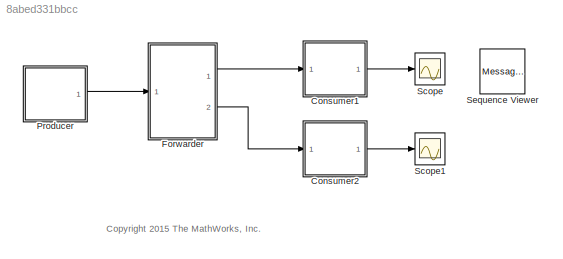
MODEL slx_8abed331bbcc
KIND model
CONFIG AbsTol = auto
CONFIG EnableMultiTasking = on
CONFIG FixedStep = 1
CONFIG MaxStep = auto
CONFIG MinStep = auto
CONFIG RelTol = 1e-3
CONFIG SampleTimeConstraint = Unconstrained
CONFIG Solver = FixedStepDiscrete
CONFIG SolverName = FixedStepDiscrete
CONFIG StartTime = 0.0
CONFIG StopTime = 10.0
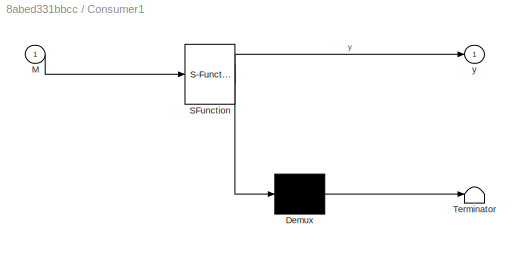
BLOCK [SubSystem] Consumer1
  ErrorFcn = Stateflow.Translate.translate
  PermitHierarchicalResolution = ExplicitOnly
  Ports = [1, 1]
  RequestExecContextInheritance = off
  SFBlockType = Chart
  TreatAsAtomicUnit = on
  Variant = off
BLOCK [Demux] Consumer1/ Demux 
  Outputs = 1
  Ports = [1, 1]
BLOCK [S-Function] Consumer1/ SFunction 
  EnableBusSupport = off
  FunctionName = sf_sfun
  PortCounts = [1 2]
  Ports = [1, 2]
  SFcnIsStateOwnerBlock = off
  SFunctionDeploymentMode = off
  Tag = Stateflow S-Function sf_msg_forwarding 2
BLOCK [Terminator] Consumer1/ Terminator 
BLOCK [Inport] Consumer1/M
  IconDisplay = Port number
BLOCK [Outport] Consumer1/y
  IconDisplay = Port number
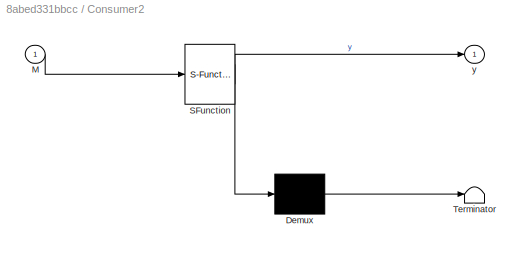
BLOCK [SubSystem] Consumer2
  ErrorFcn = Stateflow.Translate.translate
  PermitHierarchicalResolution = ExplicitOnly
  Ports = [1, 1]
  RequestExecContextInheritance = off
  SFBlockType = Chart
  TreatAsAtomicUnit = on
  Variant = off
BLOCK [Demux] Consumer2/ Demux 
  Outputs = 1
  Ports = [1, 1]
BLOCK [S-Function] Consumer2/ SFunction 
  EnableBusSupport = off
  FunctionName = sf_sfun
  PortCounts = [1 2]
  Ports = [1, 2]
  SFcnIsStateOwnerBlock = off
  SFunctionDeploymentMode = off
  Tag = Stateflow S-Function sf_msg_forwarding 4
BLOCK [Terminator] Consumer2/ Terminator 
BLOCK [Inport] Consumer2/M
  IconDisplay = Port number
BLOCK [Outport] Consumer2/y
  IconDisplay = Port number
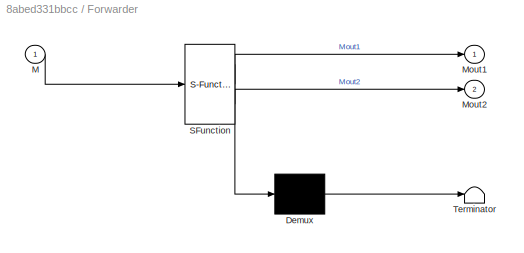
BLOCK [SubSystem] Forwarder
  ErrorFcn = Stateflow.Translate.translate
  PermitHierarchicalResolution = ExplicitOnly
  Ports = [1, 2]
  RequestExecContextInheritance = off
  SFBlockType = Chart
  TreatAsAtomicUnit = on
  Variant = off
BLOCK [Demux] Forwarder/ Demux 
  Outputs = 1
  Ports = [1, 1]
BLOCK [S-Function] Forwarder/ SFunction 
  EnableBusSupport = off
  FunctionName = sf_sfun
  PortCounts = [1 3]
  Ports = [1, 3]
  SFcnIsStateOwnerBlock = off
  SFunctionDeploymentMode = off
  Tag = Stateflow S-Function sf_msg_forwarding 1
BLOCK [Terminator] Forwarder/ Terminator 
BLOCK [Inport] Forwarder/M
  IconDisplay = Port number
BLOCK [Outport] Forwarder/Mout1
  IconDisplay = Port number
BLOCK [Outport] Forwarder/Mout2
  IconDisplay = Port number
  Port = 2
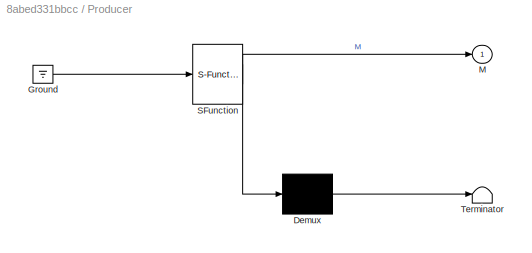
BLOCK [SubSystem] Producer
  ErrorFcn = Stateflow.Translate.translate
  PermitHierarchicalResolution = ExplicitOnly
  Ports = [0, 1]
  RequestExecContextInheritance = off
  SFBlockType = Chart
  TreatAsAtomicUnit = on
  Variant = off
BLOCK [Demux] Producer/ Demux 
  Outputs = 1
  Ports = [1, 1]
BLOCK [Ground] Producer/ Ground 
BLOCK [S-Function] Producer/ SFunction 
  EnableBusSupport = off
  FunctionName = sf_sfun
  PortCounts = [1 2]
  Ports = [1, 2]
  SFcnIsStateOwnerBlock = off
  SFunctionDeploymentMode = off
  Tag = Stateflow S-Function sf_msg_forwarding 3
BLOCK [Terminator] Producer/ Terminator 
BLOCK [Outport] Producer/M
  IconDisplay = Port number
BLOCK [Scope] Scope
  NumInputPorts = 1
  Ports = [1]
  ScopeSpecificationString = Simulink.scopes.TimeScopeBlockCfg('CurrentConfiguration', extmgr.ConfigurationSet(extmgr.Configuration('Core','General UI',true,'FigureColor',[0.156862745098039 0.156862745098039 0.156862745098039]),extmgr.Configuration('Core','Source UI',true),extmgr.Configuration('Sources','WiredSimulink',true,'DataLoggingSaveFormat','StructureWithTime','DataLoggingDecimation','1'),extmgr.Configuration('Visuals'...<+2639ch>
BLOCK [Scope] Scope1
  NumInputPorts = 1
  Ports = [1]
  ScopeSpecificationString = Simulink.scopes.TimeScopeBlockCfg('CurrentConfiguration', extmgr.ConfigurationSet(extmgr.Configuration('Core','General UI',true,'FigureColor',[0.156862745098039 0.156862745098039 0.156862745098039]),extmgr.Configuration('Core','Source UI',true),extmgr.Configuration('Sources','WiredSimulink',true,'DataLoggingVariableName','ScopeData1','DataLoggingSaveFormat','StructureWithTime','DataLoggingDecimati...<+2678ch>
BLOCK [MessageViewer] Sequence Viewer
ANNOTATION (root): <copyright redacted>
LINE Consumer1:1 -> Scope:1
LINE Consumer2:1 -> Scope1:1
LINE Forwarder:1 -> Consumer1:1
LINE Forwarder:2 -> Consumer2:1
LINE Producer:1 -> Forwarder:1
CHART Forwarder states=0 transitions=6
CHART Consumer1 states=1 transitions=0
  STATE_LABEL 'A\non M:\n  y = M.data;'
CHART Producer states=1 transitions=0
  STATE_LABEL 'A\nen:\nx = 0;\nen, du:\nM.data = x;\nsend(M);\nx = x + 1;'
CHART Consumer2 states=1 transitions=0
  STATE_LABEL 'A\non M:\n  y = M.data;'
